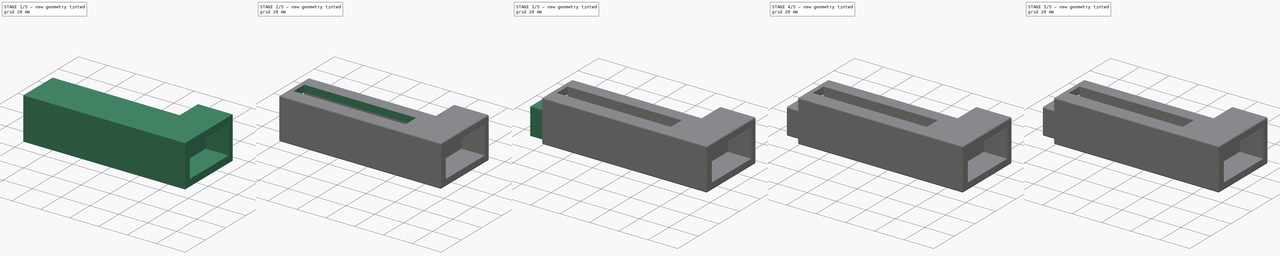
[diagram: build sequence overview — one tinted view per stage of 5, left to right]
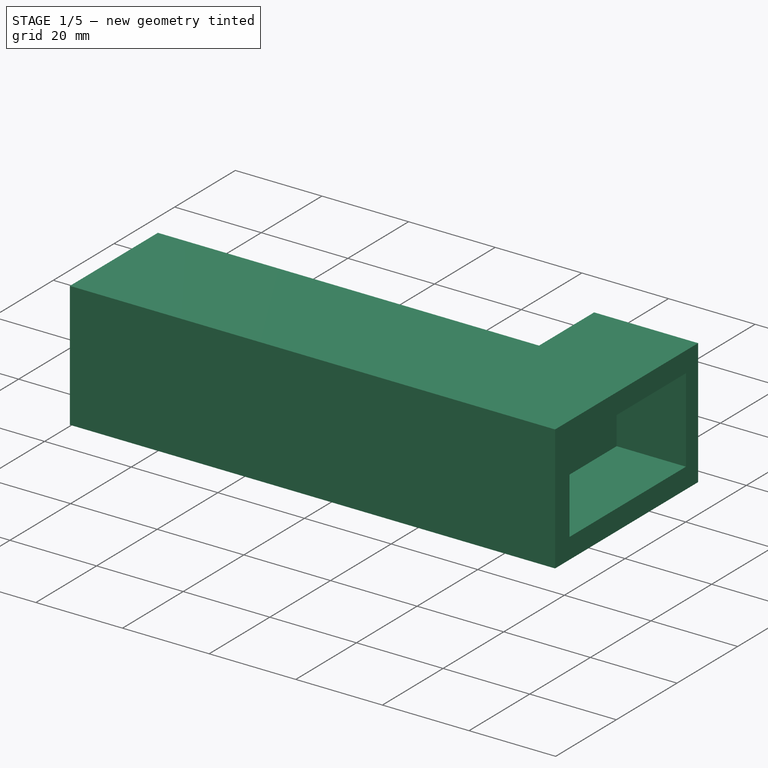
[diagram: stage 1 of 5 — iso view after this stage's code; geometry added in this stage tinted green]
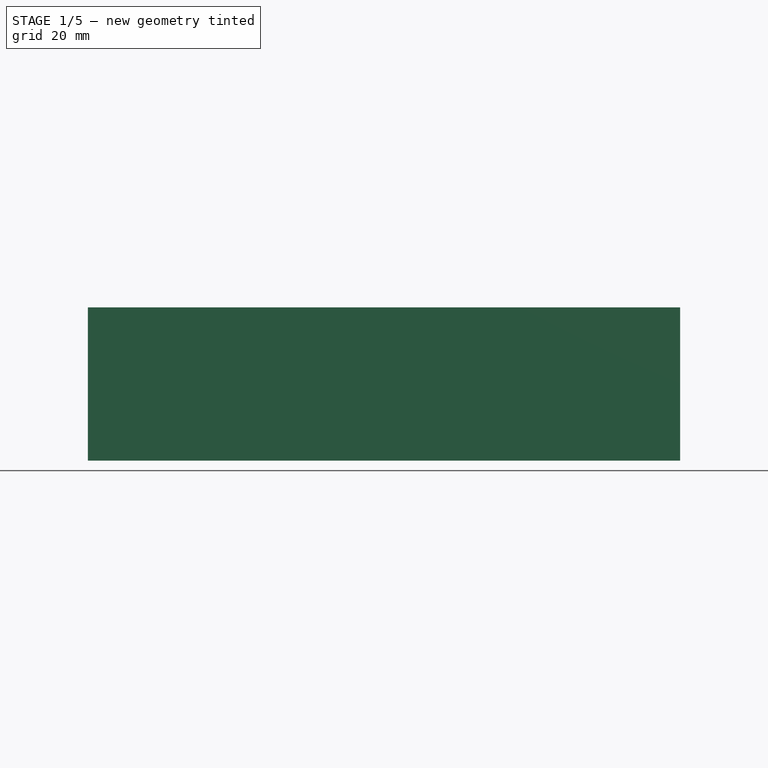
[diagram: stage 1 of 5 — front view after this stage's code; geometry added in this stage tinted green]
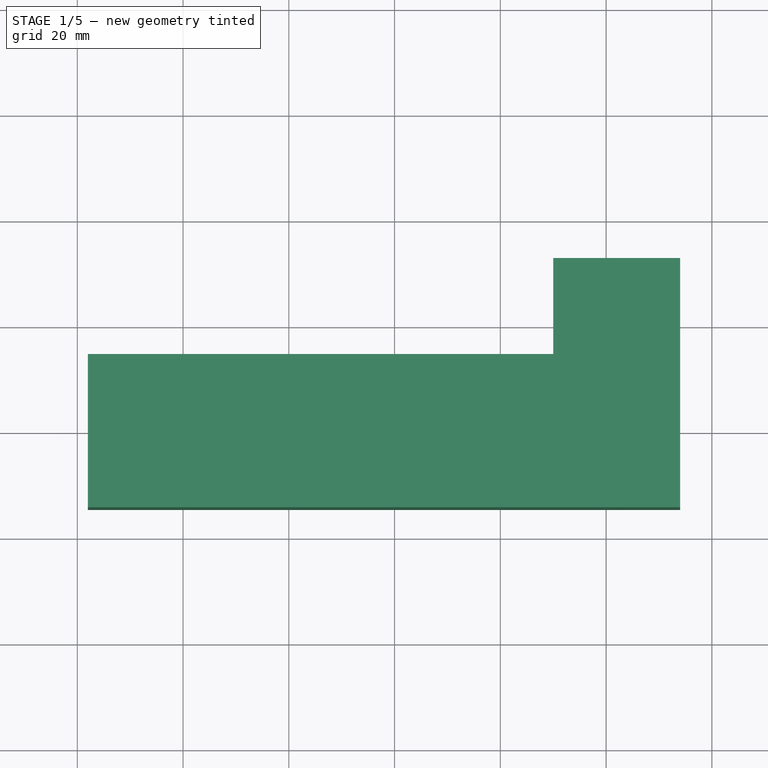
[diagram: stage 1 of 5 — top view after this stage's code; geometry added in this stage tinted green]
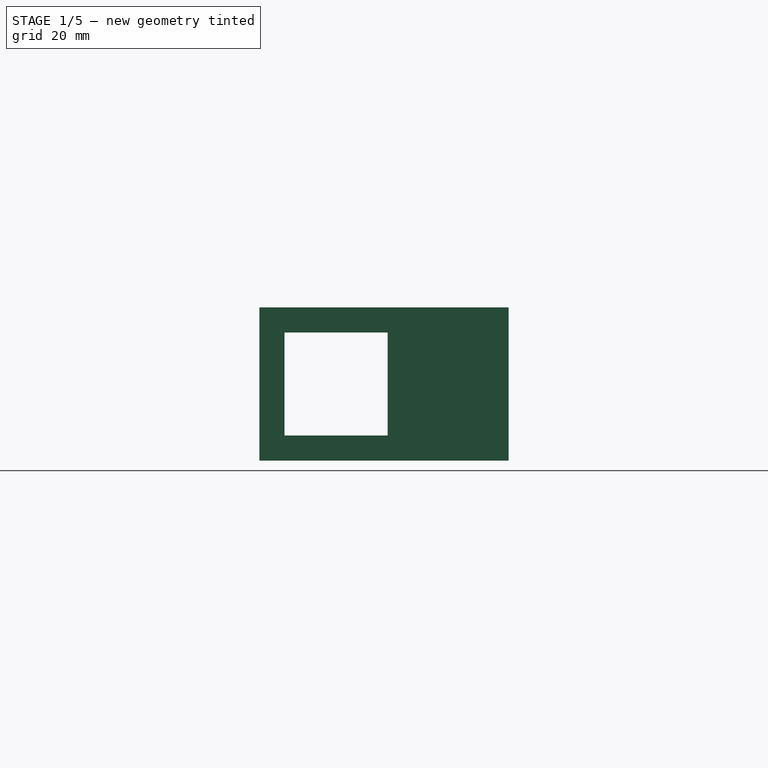
[diagram: stage 1 of 5 — right view after this stage's code; geometry added in this stage tinted green]
FCSTD DOCUMENT  (FreeCAD 0.21R33771 (Git))
Label: 3DP_LinearActuator
License: All rights reserved
LicenseURL: https://en.wikipedia.org/wiki/All_rights_reserved
objects: Sketcher::SketchObject×14, PartDesign::Pocket×11, PartDesign::Pad×3, PartDesign::Fillet×3, PartDesign::Body×3, Spreadsheet::Sheet×1
note: 51 computed .brp shape members not serialized (recipe doc carries the construction recipe); baked Part::Feature solids carry a one-line shape summary decoded from their .brp

FEATURE [PartDesign::Body] Body001  label="LimitSwitchTrig"
  Group = -> [Sketch007,Pad001,Sketch008,Pocket005]
  Origin = -> Origin001
  Placement = pos=(36,0,9) rot=(0,0,1;0rad)
  Tip = -> Pocket005
  expr: .Placement.Base.z = Spreadsheet.pistonWidth / 2
FEATURE [Sketcher::SketchObject] Sketch009
  FullyConstrained = true
  MapMode = 5
  Support = -> [XY_Plane002]
  expr: Constraints[11] = Spreadsheet.pistonWidth / 2 + Spreadsheet.housingThicknessAroundPiston + Spreadsheet.housingPistonClearance
  expr: Constraints[12] = Spreadsheet.pistonWidth + 2 * Spreadsheet.housingThicknessAroundPiston + Spreadsheet.housingPistonClearance * 2
  expr: Constraints[13] = Spreadsheet.housingMotorHeight + Spreadsheet.housingThicknessAroundPiston * 2
  expr: Constraints[15] = Spreadsheet.housingGearThickness
  expr: Constraints[16] = Spreadsheet.pistonLength + Spreadsheet.housingGearThickness - 12 mm
  expr: Constraints[17] = Spreadsheet.pistonLength / 2
  sketch-geometry (6):
    g0: LineSegment StartX=-38 StartY=14.5 StartZ=0 EndX=-38 EndY=-14.5 EndZ=0
    g1: LineSegment StartX=-38 StartY=-14.5 StartZ=0 EndX=74 EndY=-14.5 EndZ=0
    g2: LineSegment StartX=74 StartY=-14.5 StartZ=0 EndX=74 EndY=32.65 EndZ=0
    g3: LineSegment StartX=74 StartY=32.65 StartZ=0 EndX=50 EndY=32.65 EndZ=0
    g4: LineSegment StartX=50 StartY=32.65 StartZ=0 EndX=50 EndY=14.5 EndZ=0
    g5: LineSegment StartX=50 StartY=14.5 StartZ=0 EndX=-38 EndY=14.5 EndZ=0
  constraints (18):
    c: Vertical(g0)
    c: Coincident(g1,g0)
    c: Horizontal(g1)
    c: Coincident(g2,g1)
    c: Vertical(g2)
    c: Coincident(g3,g2)
    c: Horizontal(g3)
    c: Vertical(g4)
    c: Coincident(g5,g4)
    c: Coincident(g5,g0)
    c: Horizontal(g5)
    c: DistanceY(g-1,g0) = 14.5
    c: DistanceY(g0,g0) = 29
    c: DistanceY(g4,g4) = 18.15
    c: Coincident(g4,g3)
    c: DistanceX(g3,g3) = 24
    c: DistanceX(g1,g1) = 112
    c: DistanceX(g-1,g4) = 50
FEATURE [PartDesign::Pad] Pad002  label="Pad_Housing"
  Direction = (0,0,1)
  Length = 29
  Length2 = 10
  Profile = -> Sketch009
  ReferenceAxis = -> Sketch009 [N_Axis]
  Type = 0
  expr: Length = Spreadsheet.pistonWidth + Spreadsheet.housingThicknessAroundPiston * 2 + Spreadsheet.housingPistonClearance * 2
FEATURE [Sketcher::SketchObject] Sketch010
  ExternalGeometry = -> [Pad002]
  FullyConstrained = true
  MapMode = 5
  Placement = pos=(74,0,0) rot=(0.57735,0.57735,0.57735;2.0944rad)
  Support = -> [Pad002]
  expr: Constraints[8] = Spreadsheet.housingPistonWidth
  expr: Constraints[9] = Spreadsheet.housingPistonHeight
  sketch-geometry (8):
    g0: LineSegment StartX=-9.75 StartY=24.25 StartZ=0 EndX=9.75 EndY=24.25 EndZ=0
    g1: LineSegment StartX=9.75 StartY=24.25 StartZ=0 EndX=9.75 EndY=4.75 EndZ=0
    g2: LineSegment StartX=9.75 StartY=4.75 StartZ=0 EndX=-9.75 EndY=4.75 EndZ=0
    g3: LineSegment StartX=-9.75 StartY=4.75 StartZ=0 EndX=-9.75 EndY=24.25 EndZ=0
    g4: LineSegment StartX=-14.5 StartY=0 StartZ=0 EndX=-9.75 EndY=4.75 EndZ=0
    g5: LineSegment StartX=-9.75 StartY=24.25 StartZ=0 EndX=-14.5 EndY=29 EndZ=0
    g6: LineSegment StartX=-9.75 StartY=4.75 StartZ=0 EndX=0 EndY=0 EndZ=0
    g7: LineSegment StartX=0 StartY=0 StartZ=0 EndX=9.75 EndY=4.75 EndZ=0
  constraints (20):
    c: Coincident(g0,g1)
    c: Coincident(g1,g2)
    c: Coincident(g2,g3)
    c: Coincident(g3,g0)
    c: Horizontal(g0)
    c: Horizontal(g2)
    c: Vertical(g1)
    c: Vertical(g3)
    c: DistanceX(g0,g0) = 19.5
    c: DistanceY(g3,g3) = 19.5
    c: Coincident(g4,g-4)
    c: Coincident(g4,g2)
    c: Coincident(g5,g0)
    c: Coincident(g5,g-3)
    c: Equal(g4,g5)
    c: Coincident(g6,g2)
    c: Coincident(g6,g-1)
    c: Coincident(g7,g6)
    c: Coincident(g7,g1)
    c: Equal(g6,g7)
FEATURE [PartDesign::Pocket] Pocket006  label="Pocket_PistonGear"
  BaseFeature = -> Pad002
  Direction = (-1,0,0)
  Length = 5
  Length2 = 5
  Profile = -> Sketch010
  ReferenceAxis = -> Sketch010 [N_Axis]
  Type = 1
FEATURE [Sketcher::SketchObject] Sketch011
  ExternalGeometry = -> [Pocket006]
  FullyConstrained = true
  MapMode = 5
  Placement = pos=(74,0,0) rot=(0.57735,0.57735,0.57735;2.0944rad)
  Support = -> [Pocket006]
  expr: Constraints[10] = Spreadsheet.housingThicknessAroundPiston
  sketch-geometry (4):
    g0: LineSegment StartX=9.75 StartY=24.25 StartZ=0 EndX=28.65 EndY=24.25 EndZ=0
    g1: LineSegment StartX=28.65 StartY=24.25 StartZ=0 EndX=28.65 EndY=4.75 EndZ=0
    g2: LineSegment StartX=28.65 StartY=4.75 StartZ=0 EndX=9.75 EndY=4.75 EndZ=0
    g3: LineSegment StartX=9.75 StartY=4.75 StartZ=0 EndX=9.75 EndY=24.25 EndZ=0
  constraints (11):
    c: Coincident(g0,g1)
    c: Coincident(g1,g2)
    c: Coincident(g2,g3)
    c: Coincident(g3,g0)
    c: Horizontal(g0)
    c: Horizontal(g2)
    c: Vertical(g1)
    c: Vertical(g3)
    c: Coincident(g0,g-3)
    c: DistanceY(g-3,g1) = 0
    c: DistanceX(g1,g-4) = 4
FEATURE [PartDesign::Pocket] Pocket007  label="Pocket_MotorGear"
  BaseFeature = -> Pocket006
  Direction = (-1,0,0)
  Length = 16
  Length2 = 5
  Profile = -> Sketch011
  ReferenceAxis = -> Sketch011 [N_Axis]
  Type = 0
  expr: Length = Spreadsheet.housingGearThickness - Spreadsheet.motorInsetDepth - Spreadsheet.motorShaftCollarDepth
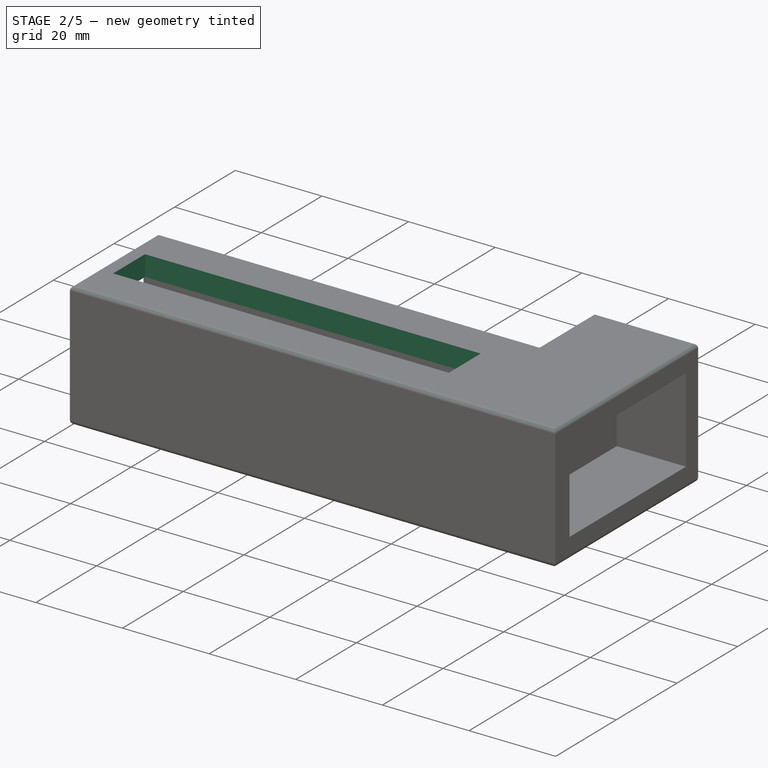
[diagram: stage 2 of 5 — iso view after this stage's code; geometry added in this stage tinted green]
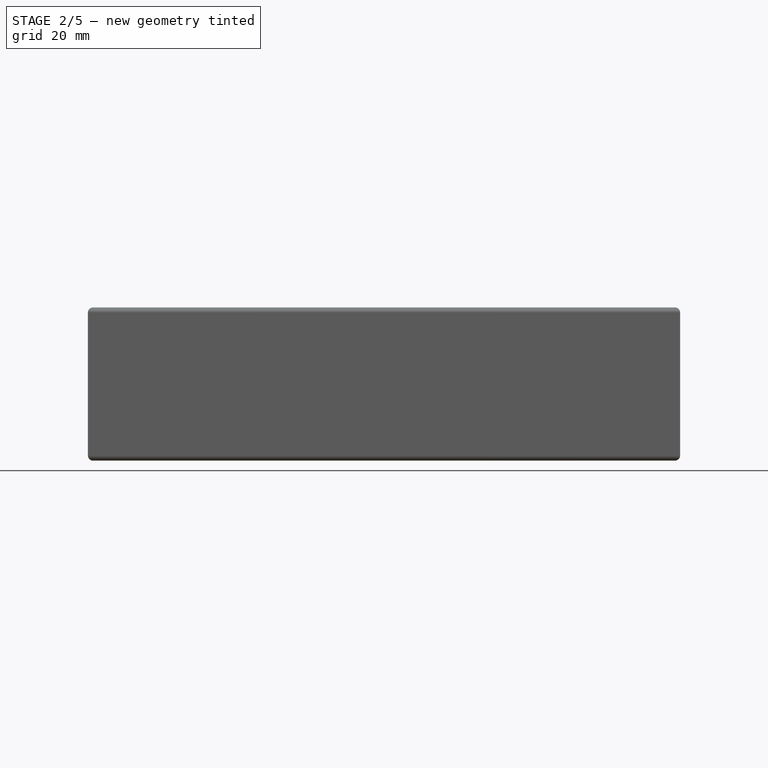
[diagram: stage 2 of 5 — front view after this stage's code; geometry added in this stage tinted green]
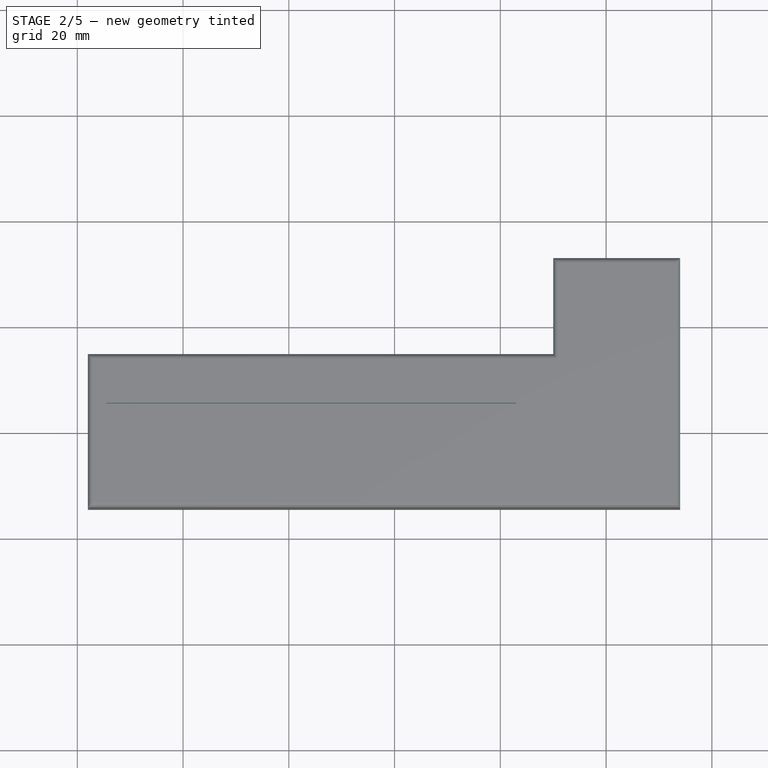
[diagram: stage 2 of 5 — top view after this stage's code; geometry added in this stage tinted green]
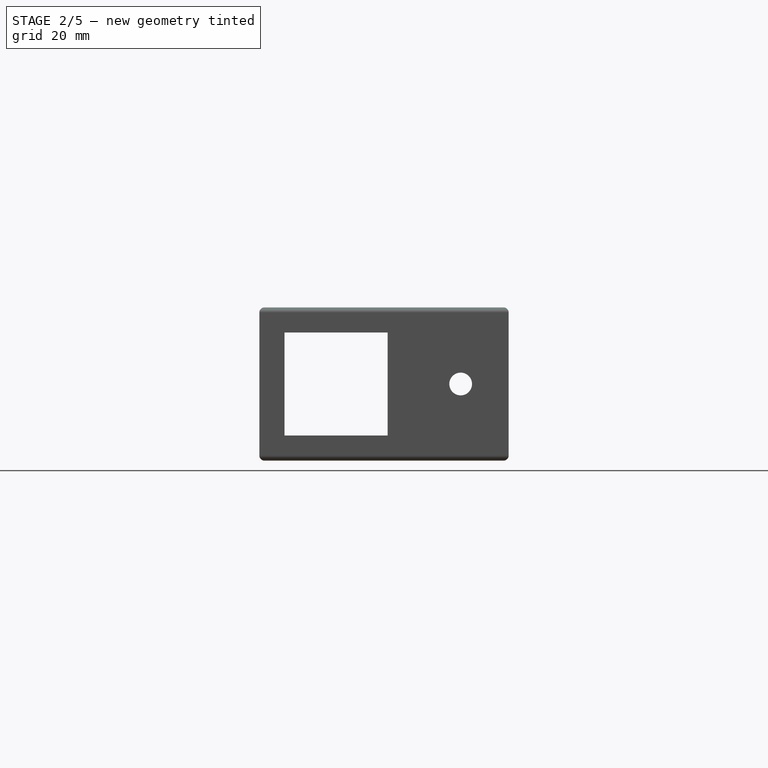
[diagram: stage 2 of 5 — right view after this stage's code; geometry added in this stage tinted green]
FEATURE [PartDesign::Fillet] Fillet002
  Base = -> Pocket007 [Face4,Face3]
  BaseFeature = -> Pocket007
  Radius = 1
  SupportTransform = false
  UseAllEdges = false
FEATURE [Sketcher::SketchObject] Sketch012
  ExternalGeometry = -> [Fillet002]
  FullyConstrained = true
  MapMode = 5
  Placement = pos=(50,0,0) rot=(0.57735,-0.57735,-0.57735;2.0944rad)
  Support = -> [Fillet002]
  expr: Constraints[10] = Spreadsheet.housingThicknessAroundPiston
  expr: Constraints[8] = Spreadsheet.housingMotorHeight
  expr: Constraints[9] = Spreadsheet.housingMotorWidth
  sketch-geometry (6):
    g0: LineSegment StartX=-28.65 StartY=20.625 StartZ=0 EndX=-18.5 EndY=20.625 EndZ=0
    g1: LineSegment StartX=-18.5 StartY=20.625 StartZ=0 EndX=-18.5 EndY=8.375 EndZ=0
    g2: LineSegment StartX=-18.5 StartY=8.375 StartZ=0 EndX=-28.65 EndY=8.375 EndZ=0
    g3: LineSegment StartX=-28.65 StartY=8.375 StartZ=0 EndX=-28.65 EndY=20.625 EndZ=0
    g4: LineSegment StartX=-28.65 StartY=20.625 StartZ=0 EndX=-32.65 EndY=28 EndZ=0
    g5: LineSegment StartX=-28.65 StartY=8.375 StartZ=0 EndX=-32.65 EndY=1 EndZ=0
  constraints (16):
    c: Coincident(g0,g1)
    c: Coincident(g1,g2)
    c: Coincident(g2,g3)
    c: Coincident(g3,g0)
    c: Horizontal(g0)
    c: Horizontal(g2)
    c: Vertical(g1)
    c: Vertical(g3)
    c: DistanceX(g0,g0) = 10.15
    c: DistanceY(g1,g1) = 12.25
    c: DistanceX(g-3,g2) = 4
    c: Coincident(g4,g0)
    c: Coincident(g4,g-3)
    c: Coincident(g5,g2)
    c: Coincident(g5,g-3)
    c: Equal(g5,g4)
FEATURE [PartDesign::Pocket] Pocket008  label="Pocket_MotorBase"
  BaseFeature = -> Fillet002
  Direction = (1,0,0)
  Length = 6
  Length2 = 5
  Profile = -> Sketch012
  ReferenceAxis = -> Sketch012 [N_Axis]
  Type = 0
FEATURE [Sketcher::SketchObject] Sketch013
  ExternalGeometry = -> [Pocket008]
  FullyConstrained = true
  MapMode = 5
  Placement = pos=(56,0,0) rot=(0.57735,-0.57735,-0.57735;2.0944rad)
  Support = -> [Pocket008]
  expr: Constraints[0] = Spreadsheet.motorShaftCollarDiam
  sketch-geometry (1):
    g0: Circle CenterX=-23.575 CenterY=14.5 CenterZ=0 NormalX=0 NormalY=0 NormalZ=1 AngleXU=0 Radius=2.15
  constraints (2):
    c: Diameter(g0) = 4.3
    c: Symmetric(g-3,g-4,g0)
FEATURE [PartDesign::Pocket] Pocket009  label="Pocket_MotorShaft"
  BaseFeature = -> Pocket008
  Direction = (1,0,0)
  Length = 5
  Length2 = 5
  Profile = -> Sketch013
  ReferenceAxis = -> Sketch013 [N_Axis]
  Type = 1
FEATURE [Sketcher::SketchObject] Sketch014
  ExternalGeometry = -> [Pocket009]
  FullyConstrained = true
  MapMode = 5
  Placement = pos=(0,0,29) rot=(0,0,1;0rad)
  Support = -> [Pocket009]
  expr: Constraints[15] = Spreadsheet.triggerWidth + 0.5 mm
  sketch-geometry (6):
    g0: LineSegment StartX=43 StartY=5.25 StartZ=0 EndX=-34.5 EndY=5.25 EndZ=0
    g1: LineSegment StartX=-34.5 StartY=5.25 StartZ=0 EndX=-34.5 EndY=-5.25 EndZ=0
    g2: LineSegment StartX=-34.5 StartY=-5.25 StartZ=0 EndX=43 EndY=-5.25 EndZ=0
    g3: LineSegment StartX=43 StartY=-5.25 StartZ=0 EndX=43 EndY=5.25 EndZ=0
    g4: LineSegment StartX=43 StartY=5.25 StartZ=0 EndX=0 EndY=0 EndZ=0
    g5: LineSegment StartX=0 StartY=0 StartZ=0 EndX=43 EndY=-5.25 EndZ=0
  constraints (16):
    c: Coincident(g0,g1)
    c: Coincident(g1,g2)
    c: Coincident(g2,g3)
    c: Coincident(g3,g0)
    c: Horizontal(g0)
    c: Horizontal(g2)
    c: Vertical(g1)
    c: Vertical(g3)
    c: Coincident(g4,g0)
    c: Coincident(g4,g-1)
    c: Coincident(g5,g4)
    c: Coincident(g5,g2)
    c: Equal(g5,g4)
    c: DistanceX(g-3,g0) = 2.5
    c: DistanceX(g-3,g2) = 80
    c: DistanceY(g1,g1) = 10.5
FEATURE [PartDesign::Pocket] Pocket010  label="Pocket_Trigger"
  BaseFeature = -> Pocket009
  Direction = (0,0,-1)
  Length = 5
  Length2 = 5
  Profile = -> Sketch014
  ReferenceAxis = -> Sketch014 [N_Axis]
  Type = 2
FEATURE [PartDesign::Body] Body002  label="Housing"
  Group = -> [Sketch009,Pad002,Sketch010,Pocket006,Sketch011,Pocket007,Fillet002,Sketch012,Pocket008,Sketch013,Pocket009,Sketch014,Pocket010]
  Origin = -> Origin002
  Placement = pos=(0,0,-14.5) rot=(0,0,1;0rad)
  Tip = -> Pocket010
  expr: .Placement.Base.z = -Spreadsheet.pistonWidth / 2 - Spreadsheet.housingThicknessAroundPiston - Spreadsheet.housingPistonClearance
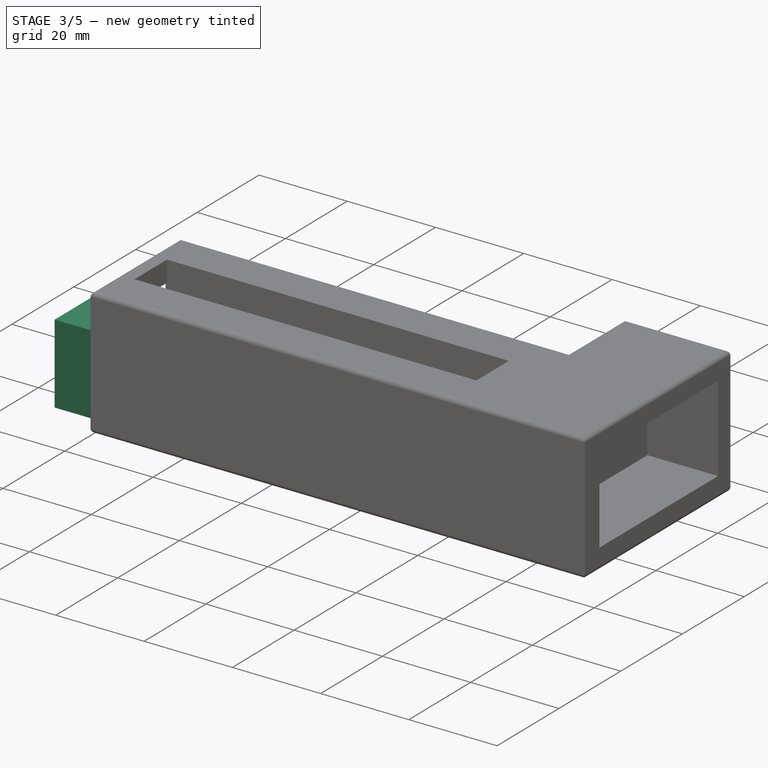
[diagram: stage 3 of 5 — iso view after this stage's code; geometry added in this stage tinted green]
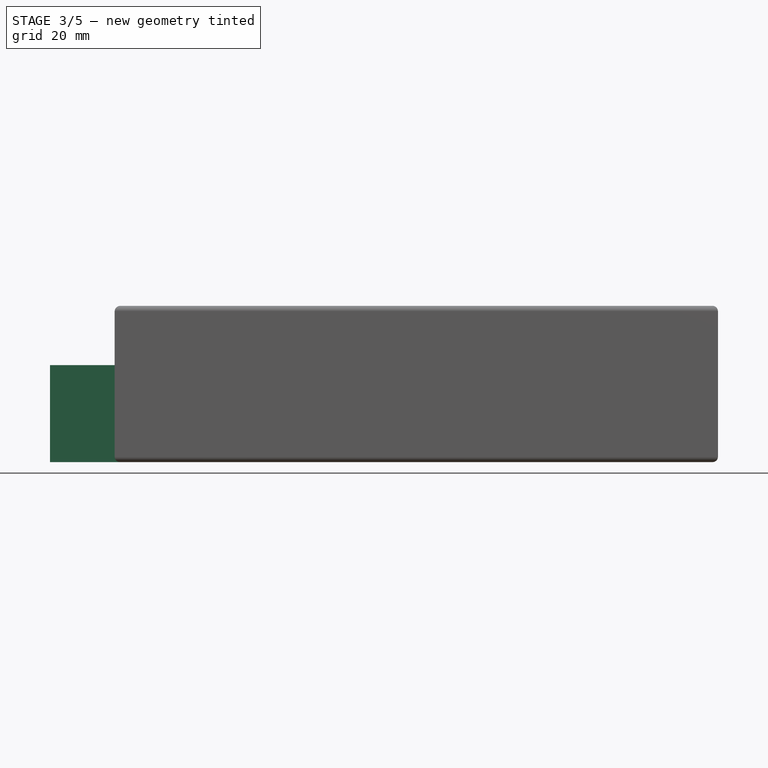
[diagram: stage 3 of 5 — front view after this stage's code; geometry added in this stage tinted green]
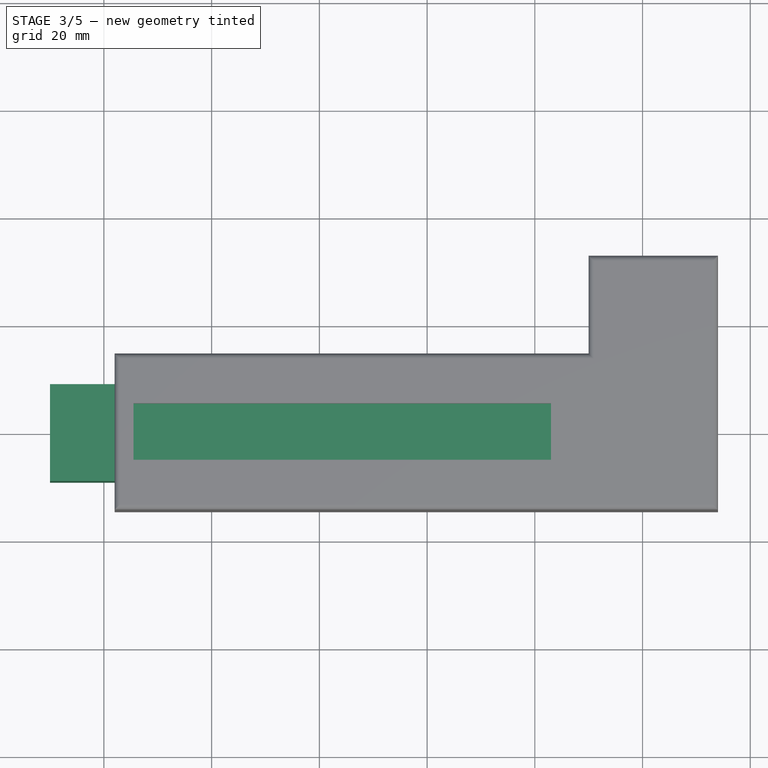
[diagram: stage 3 of 5 — top view after this stage's code; geometry added in this stage tinted green]
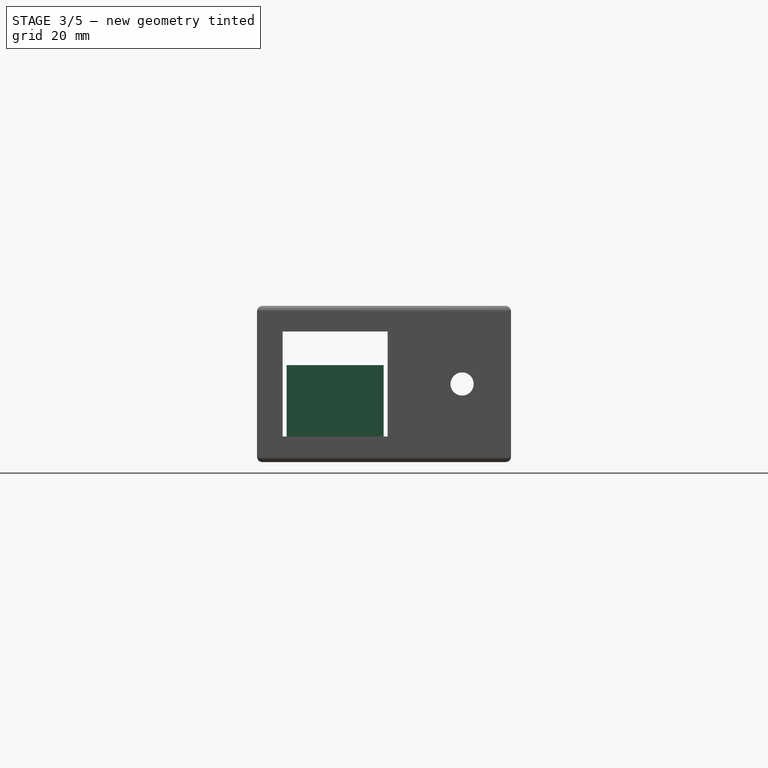
[diagram: stage 3 of 5 — right view after this stage's code; geometry added in this stage tinted green]
FEATURE [Sketcher::SketchObject] Sketch
  FullyConstrained = true
  MapMode = 5
  Support = -> [XY_Plane]
  expr: Constraints[10] = Spreadsheet.pistonLength
  expr: Constraints[9] = Spreadsheet.pistonWidth
  sketch-geometry (4):
    g0: LineSegment StartX=-50 StartY=9 StartZ=0 EndX=50 EndY=9 EndZ=0
    g1: LineSegment StartX=50 StartY=9 StartZ=0 EndX=50 EndY=-9 EndZ=0
    g2: LineSegment StartX=50 StartY=-9 StartZ=0 EndX=-50 EndY=-9 EndZ=0
    g3: LineSegment StartX=-50 StartY=-9 StartZ=0 EndX=-50 EndY=9 EndZ=0
  constraints (11):
    c: Coincident(g0,g1)
    c: Coincident(g1,g2)
    c: Coincident(g2,g3)
    c: Coincident(g3,g0)
    c: Horizontal(g0)
    c: Horizontal(g2)
    c: Vertical(g1)
    c: Vertical(g3)
    c: Symmetric(g2,g0,g-1)
    c: DistanceY(g3,g3) = 18
    c: DistanceX(g0,g0) = 100
FEATURE [Spreadsheet::Sheet] Spreadsheet
  cells = A1='pistonLength; B1(pistonLength)==100 mm; A2='pistonWidth; B2(pistonWidth)==18 mm; A3='pistonClearance; B3(pistonClearance)==0.5 mm; A4='pistonNutWidth; B4(pistonNutWidth)==11.4 mm; A5='pistonNutDepth; B5(pistonNutDepth)==pistonWidth / 2 + 6.5 mm; A6='pistonNutThickness; B6(pistonNutThickness)==5.8 mm; A7='pistonHollowDiam; B7(pistonHollowDiam)==8 mm; A8='pistonUnhollowedLength; B8(pistonUnhollowedLength)==12 mm; A10='insertDiam; B10(insertDiam)==5.6 mm; A11='insertDepth; B11(insertDepth)==4 mm; A12='LA_ConnectionDiam; B12(LA_ConnectionDiam)==4.5 mm; A14='triggerHeight; B14(triggerHeight)==5 mm; A15='triggerSlotTravel; B15(triggerSlotTravel)==10 mm; A16='triggerWidth; B16(triggerWidth)==10 mm; A17='triggerLength; B17(triggerLength)==24 mm; A18='triggerScrewDiam; B18(triggerScrewDiam)==6.75 mm; A19='triggerScrewHeight; B19(triggerScrewHeight)==3 mm; A20='triggerScrewShaftDiam; B20(triggerScrewShaftDiam)==3.45 mm; A22='housingPistonWidth; B22(housingPistonWidth)==pistonWidth + housingPistonClearance; A23='housingPistonHeight; B23(housingPistonHeight)==pistonWidth + housingPistonClearance; A24='housingThicknessAroundPiston; B24(housingThicknessAroundPiston)==4 mm; A25='housingPistonClearance; B25(housingPistonClearance)==1.5 mm; A26='housingMotorWidth; B26(housingMotorWidth)==12.25 mm; A27='housingMotorHeight; B27(housingMotorHeight)==10.15 mm; A28='housingGearThickness; B28(housingGearThickness)==24 mm; A30='motorInsetDepth; B30(motorInsetDepth)==6 mm; A31='motorShaftCollarDepth; B31(motorShaftCollarDepth)==2 mm; A32='motorShaftCollarDiam; B32(motorShaftCollarDiam)==4.3 mm
FEATURE [PartDesign::Pad] Pad
  Direction = (0,0,1)
  Length = 18
  Length2 = 10
  Profile = -> Sketch
  ReferenceAxis = -> Sketch [N_Axis]
  Type = 0
  expr: Length = Spreadsheet.pistonWidth
FEATURE [PartDesign::Body] Body  label="Piston"
  Group = -> [Sketch,Pad,Fillet,Sketch001,Pocket,Sketch002,Pocket001,Sketch003,Pocket002,Sketch005,Pocket003,Sketch006,Pocket004,Fillet001]
  Origin = -> Origin
  Placement = pos=(0,0,-9) rot=(0,0,1;0rad)
  Tip = -> Fillet001
  expr: .Placement.Base.z = -Spreadsheet.pistonWidth / 2
FEATURE [Sketcher::SketchObject] Sketch007
  FullyConstrained = true
  MapMode = 5
  Support = -> [XY_Plane001]
  expr: Constraints[25] = Spreadsheet.triggerWidth
  expr: Constraints[58] = Spreadsheet.triggerLength
  expr: Constraints[7] = Spreadsheet.triggerSlotTravel
  expr: Constraints[8] = Spreadsheet.triggerScrewShaftDiam
  sketch-geometry (23):
    g0: ArcOfCircle CenterX=-10 CenterY=0 CenterZ=0 NormalX=0 NormalY=0 NormalZ=1 AngleXU=0 Radius=1.725 StartAngle=1.5708 EndAngle=4.71239
    g1: ArcOfCircle CenterX=0 CenterY=0 CenterZ=0 NormalX=0 NormalY=0 NormalZ=1 AngleXU=0 Radius=1.725 StartAngle=4.71239 EndAngle=7.85398
    g2: LineSegment StartX=-10 StartY=-1.725 StartZ=0 EndX=0 EndY=-1.725 EndZ=0
    g3: LineSegment StartX=5e-16 StartY=1.725 StartZ=0 EndX=-10 EndY=1.725 EndZ=0
    g4: LineSegment StartX=-17 StartY=5 StartZ=0 EndX=3 EndY=5 EndZ=0
    g5: LineSegment StartX=3 StartY=-5 StartZ=0 EndX=-17 EndY=-5 EndZ=0
    g6: LineSegment StartX=-19 StartY=3 StartZ=0 EndX=-19 EndY=-3 EndZ=0
    g7: LineSegment StartX=5 StartY=3 StartZ=0 EndX=5 EndY=-3 EndZ=0
    g8: ArcOfCircle CenterX=-17 CenterY=3 CenterZ=0 NormalX=0 NormalY=0 NormalZ=1 AngleXU=0 Radius=2 StartAngle=1.5708 EndAngle=3.14159
    g9: ArcOfCircle CenterX=-17 CenterY=-3 CenterZ=0 NormalX=0 NormalY=0 NormalZ=1 AngleXU=0 Radius=2 StartAngle=3.14159 EndAngle=4.71239
    g10: ArcOfCircle CenterX=3 CenterY=3 CenterZ=0 NormalX=0 NormalY=0 NormalZ=1 AngleXU=0 Radius=2 StartAngle=0 EndAngle=1.5708
    g11: ArcOfCircle CenterX=3 CenterY=-3 CenterZ=0 NormalX=0 NormalY=0 NormalZ=1 AngleXU=0 Radius=2 StartAngle=4.71239 EndAngle=6.28319
    g12: LineSegment StartX=5 StartY=3 StartZ=0 EndX=0 EndY=0 EndZ=0
    g13: LineSegment StartX=5 StartY=-3 StartZ=0 EndX=0 EndY=0 EndZ=0
    g14: LineSegment StartX=5 StartY=-3 StartZ=0 EndX=0 EndY=0 EndZ=0
    g15: LineSegment StartX=5 StartY=3 StartZ=0 EndX=3 EndY=3 EndZ=0
    g16: LineSegment StartX=3 StartY=3 StartZ=0 EndX=3 EndY=5 EndZ=0
    g17: LineSegment StartX=5 StartY=-3 StartZ=0 EndX=3 EndY=-3 EndZ=0
    g18: LineSegment StartX=3 StartY=-3 StartZ=0 EndX=3 EndY=-5 EndZ=0
    g19: LineSegment StartX=-17 StartY=-5 StartZ=0 EndX=-17 EndY=-3 EndZ=0
    g20: LineSegment StartX=-17 StartY=-3 StartZ=0 EndX=-19 EndY=-3 EndZ=0
    g21: LineSegment StartX=-17 StartY=3 StartZ=0 EndX=-19 EndY=3 EndZ=0
    g22: LineSegment StartX=-17 StartY=3 StartZ=0 EndX=-17 EndY=5 EndZ=0
  constraints (59):
    c: Tangent(g0,g2) = -1.5708
    c: Tangent(g2,g1) = -1.5708
    c: Tangent(g1,g3) = -1.5708
    c: Tangent(g3,g0) = -1.5708
    c: Equal(g0,g1)
    c: PointOnObject(g0,g-1)
    c: Coincident(g-1,g1)
    c: DistanceX(g3,g3) = 10
    c: Diameter(g0) = 3.45
    c: Horizontal(g4)
    c: Horizontal(g5)
    c: Vertical(g6)
    c: Vertical(g7)
    c: Coincident(g8,g6)
    c: Coincident(g8,g4)
    c: Coincident(g9,g5)
    c: Coincident(g9,g6)
    c: Coincident(g10,g4)
    c: Coincident(g10,g7)
    c: Coincident(g11,g5)
    c: Coincident(g11,g7)
    c: Equal(g10,g11)
    c: Equal(g11,g9)
    c: Equal(g9,g8)
    c: Radius(g8) = 2
    c: DistanceY(g5,g4) = 10
    c: Equal(g7,g6)
    c: Equal(g5,g4)
    c: DistanceX(g1,g7) = 5
    c: Coincident(g12,g10)
    c: Coincident(g12,g1)
    c: Coincident(g13,g11)
    c: Coincident(g13,g1)
    c: Equal(g13,g12)
    c: Coincident(g14,g11)
    c: Coincident(g14,g1)
    c: Coincident(g15,g10)
    c: Coincident(g15,g10)
    c: Coincident(g16,g10)
    c: Coincident(g16,g4)
    c: Coincident(g17,g11)
    c: Coincident(g17,g11)
    c: Coincident(g18,g11)
    c: Coincident(g18,g5)
    c: Coincident(g19,g5)
    c: Coincident(g19,g9)
    c: Coincident(g20,g9)
    c: Coincident(g20,g6)
    c: Coincident(g21,g8)
    c: Coincident(g21,g6)
    c: Coincident(g22,g8)
    c: Coincident(g22,g4)
    c: Horizontal(g21)
    c: Horizontal(g20)
    c: Horizontal(g17)
    c: Horizontal(g15)
    c: Vertical(g22)
    c: Vertical(g19)
    c: DistanceX(g6,g7) = 24
FEATURE [PartDesign::Pad] Pad001  label="MainPad"
  Direction = (0,0,1)
  Length = 5
  Length2 = 10
  Profile = -> Sketch007
  ReferenceAxis = -> Sketch007 [N_Axis]
  Type = 0
  expr: Length = Spreadsheet.triggerHeight
FEATURE [Sketcher::SketchObject] Sketch008
  ExternalGeometry = -> [Pad001]
  FullyConstrained = true
  MapMode = 5
  Placement = pos=(0,0,5) rot=(0,0,1;0rad)
  Support = -> [Pad001]
  expr: Constraints[8] = Spreadsheet.triggerScrewDiam
  sketch-geometry (4):
    g0: ArcOfCircle CenterX=0 CenterY=1e-16 CenterZ=0 NormalX=0 NormalY=0 NormalZ=1 AngleXU=0 Radius=3.375 StartAngle=4.71239 EndAngle=7.85398
    g1: ArcOfCircle CenterX=-10 CenterY=0 CenterZ=0 NormalX=0 NormalY=0 NormalZ=1 AngleXU=0 Radius=3.375 StartAngle=1.5708 EndAngle=4.71239
    g2: LineSegment StartX=-2.46992e-11 StartY=3.375 StartZ=0 EndX=-10 EndY=3.375 EndZ=0
    g3: LineSegment StartX=-10 StartY=-3.375 StartZ=0 EndX=-3.9098e-12 EndY=-3.375 EndZ=0
  constraints (9):
    c: Tangent(g0,g2) = -1.5708
    c: Tangent(g2,g1) = -1.5708
    c: Tangent(g1,g3) = -1.5708
    c: Tangent(g3,g0) = -1.5708
    c: Equal(g0,g1)
    c: Coincident(g0,g-1)
    c: PointOnObject(g1,g-1)
    c: DistanceX(g1,g-3) = 0
    c: Diameter(g1) = 6.75
FEATURE [PartDesign::Pocket] Pocket005  label="ScrewheadPocket"
  BaseFeature = -> Pad001
  Direction = (0,0,-1)
  Length = 3.5
  Length2 = 5
  Profile = -> Sketch008
  ReferenceAxis = -> Sketch008 [N_Axis]
  Type = 0
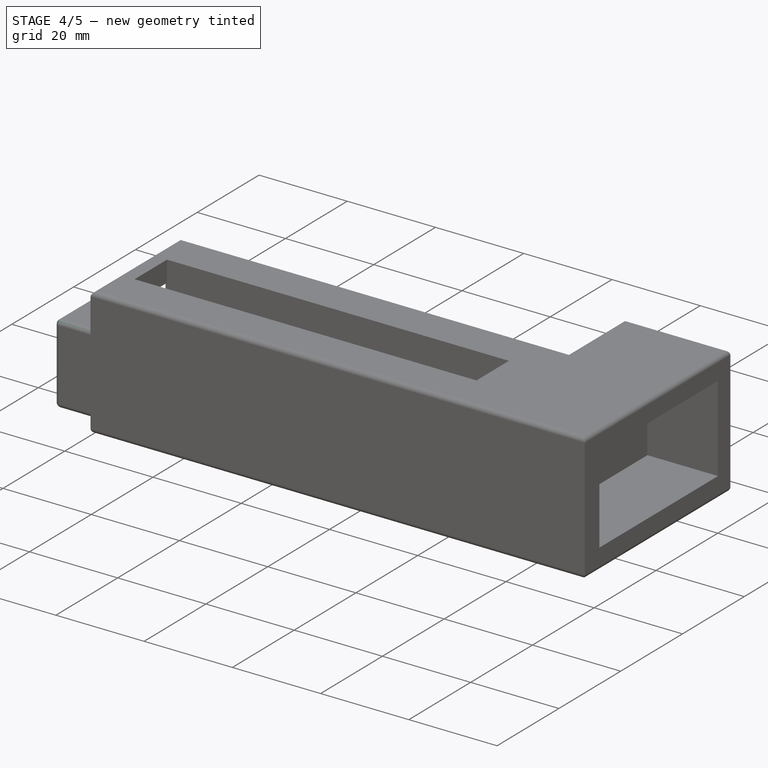
[diagram: stage 4 of 5 — iso view after this stage's code; geometry added in this stage tinted green]
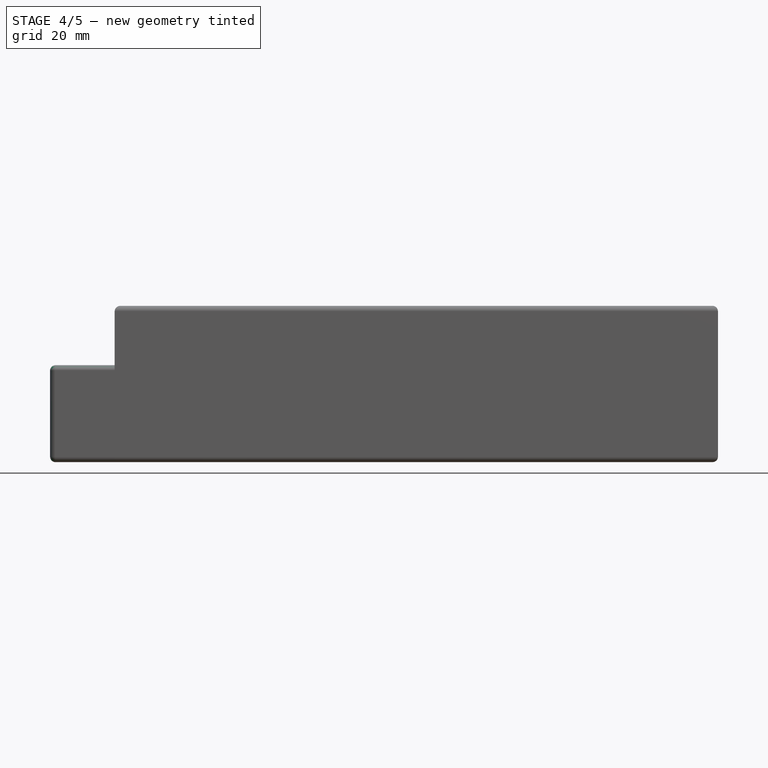
[diagram: stage 4 of 5 — front view after this stage's code; geometry added in this stage tinted green]
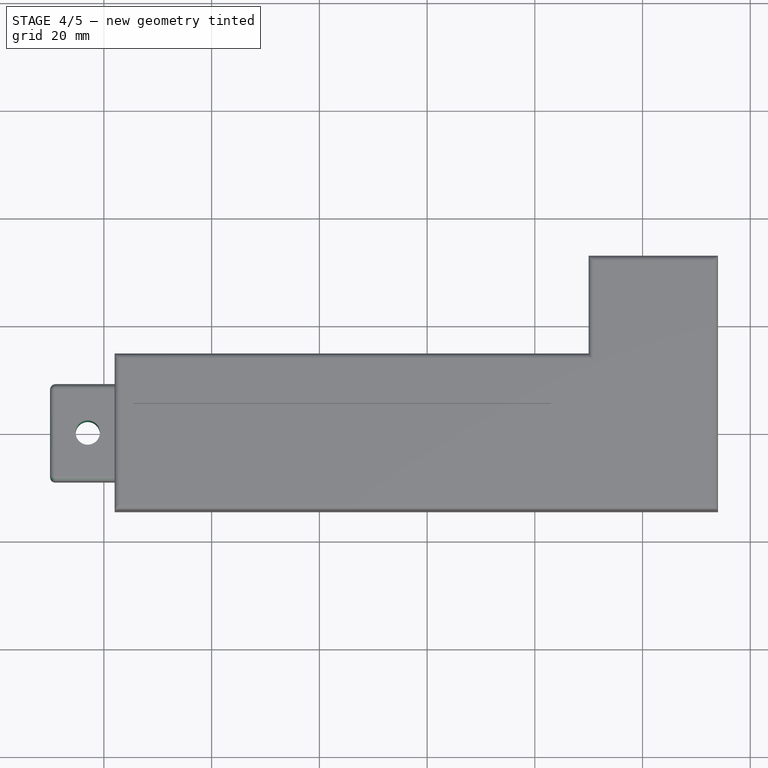
[diagram: stage 4 of 5 — top view after this stage's code; geometry added in this stage tinted green]
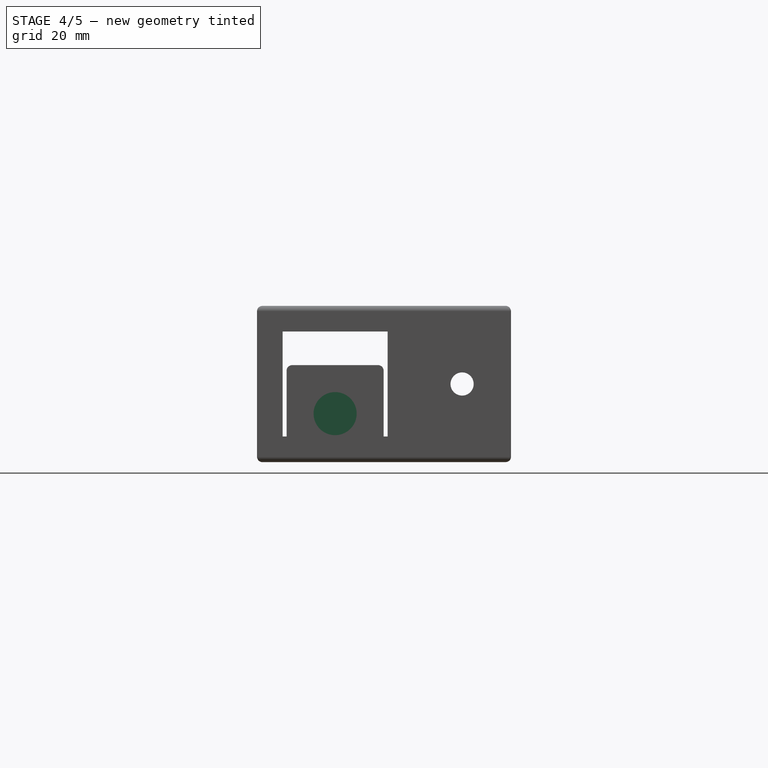
[diagram: stage 4 of 5 — right view after this stage's code; geometry added in this stage tinted green]
FEATURE [PartDesign::Fillet] Fillet
  Base = -> Pad [Edge10,Edge4,Edge9,Edge3,Edge11,Edge1,Edge12,Edge8]
  BaseFeature = -> Pad
  Radius = 1
  SupportTransform = false
  UseAllEdges = false
FEATURE [Sketcher::SketchObject] Sketch001
  ExternalGeometry = -> [Fillet]
  FullyConstrained = true
  MapMode = 5
  Placement = pos=(0,0,18) rot=(0,0,1;0rad)
  Support = -> [Fillet]
  expr: Constraints[13] = Spreadsheet.pistonNutWidth
  expr: Constraints[14] = Spreadsheet.pistonNutThickness
  sketch-geometry (6):
    g0: LineSegment StartX=40.2 StartY=5.7 StartZ=0 EndX=46 EndY=5.7 EndZ=0
    g1: LineSegment StartX=46 StartY=5.7 StartZ=0 EndX=46 EndY=-5.7 EndZ=0
    g2: LineSegment StartX=46 StartY=-5.7 StartZ=0 EndX=40.2 EndY=-5.7 EndZ=0
    g3: LineSegment StartX=40.2 StartY=-5.7 StartZ=0 EndX=40.2 EndY=5.7 EndZ=0
    g4: LineSegment StartX=0 StartY=9e-16 StartZ=0 EndX=40.2 EndY=5.7 EndZ=0
    g5: LineSegment StartX=40.2 StartY=-5.7 StartZ=0 EndX=0 EndY=9e-16 EndZ=0
  constraints (16):
    c: Coincident(g0,g1)
    c: Coincident(g1,g2)
    c: Coincident(g2,g3)
    c: Coincident(g3,g0)
    c: Horizontal(g0)
    c: Horizontal(g2)
    c: Vertical(g1)
    c: Vertical(g3)
    c: Coincident(g4,g-1)
    c: Coincident(g4,g0)
    c: Coincident(g5,g2)
    c: Coincident(g5,g4)
    c: Equal(g5,g4)
    c: DistanceY(g3,g3) = 11.4
    c: DistanceX(g0,g0) = 5.8
    c: DistanceX(g1,g-3) = 4
FEATURE [PartDesign::Pocket] Pocket  label="NutPocket"
  BaseFeature = -> Fillet
  Direction = (0,0,-1)
  Length = 15.5
  Length2 = 5
  Profile = -> Sketch001
  ReferenceAxis = -> Sketch001 [N_Axis]
  Type = 0
  expr: Length = Spreadsheet.pistonNutDepth
FEATURE [Sketcher::SketchObject] Sketch002
  ExternalGeometry = -> [Pocket]
  FullyConstrained = true
  MapMode = 5
  Placement = pos=(50,0,0) rot=(0.57735,0.57735,0.57735;2.0944rad)
  Support = -> [Pocket]
  sketch-geometry (1):
    g0: Circle CenterX=0 CenterY=9 CenterZ=0 NormalX=0 NormalY=0 NormalZ=1 AngleXU=0 Radius=4
  constraints (2):
    c: Diameter(g0) = 8
    c: Symmetric(g-3,g-4,g0)
FEATURE [PartDesign::Pocket] Pocket001  label="ThreadPocket"
  BaseFeature = -> Pocket
  Direction = (-1,0,0)
  Length = 88
  Length2 = 5
  Profile = -> Sketch002
  ReferenceAxis = -> Sketch002 [N_Axis]
  Type = 0
  expr: Length = Spreadsheet.pistonLength - Spreadsheet.pistonUnhollowedLength
FEATURE [Sketcher::SketchObject] Sketch003
  ExternalGeometry = -> [Pocket001]
  FullyConstrained = true
  MapMode = 5
  Placement = pos=(0,0,18) rot=(0,0,1;0rad)
  Support = -> [Pocket001]
  expr: Constraints[5] = Spreadsheet.LA_ConnectionDiam
  expr: Constraints[6] = Spreadsheet.pistonUnhollowedLength / 2
  sketch-geometry (3):
    g0: LineSegment StartX=-49 StartY=8 StartZ=0 EndX=-43 EndY=0 EndZ=0
    g1: LineSegment StartX=-43 StartY=0 StartZ=0 EndX=-49 EndY=-8 EndZ=0
    g2: Circle CenterX=-43 CenterY=0 CenterZ=0 NormalX=0 NormalY=0 NormalZ=1 AngleXU=0 Radius=2.25
  constraints (7):
    c: Coincident(g0,g-3)
    c: Coincident(g1,g0)
    c: Coincident(g1,g-3)
    c: Equal(g1,g0)
    c: Coincident(g2,g0)
    c: Diameter(g2) = 4.5
    c: DistanceX(g1,g2) = 6
FEATURE [PartDesign::Pocket] Pocket002  label="AttachmentPocket"
  BaseFeature = -> Pocket001
  Direction = (0,0,-1)
  Length = 5
  Length2 = 5
  Profile = -> Sketch003
  ReferenceAxis = -> Sketch003 [N_Axis]
  Type = 1
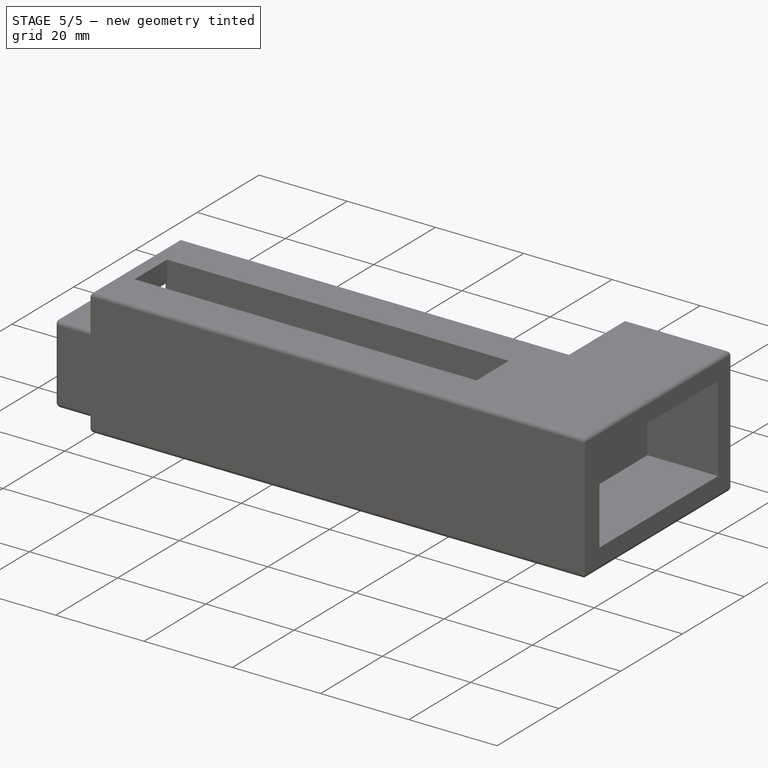
[diagram: stage 5 of 5 — iso view after this stage's code; geometry added in this stage tinted green]
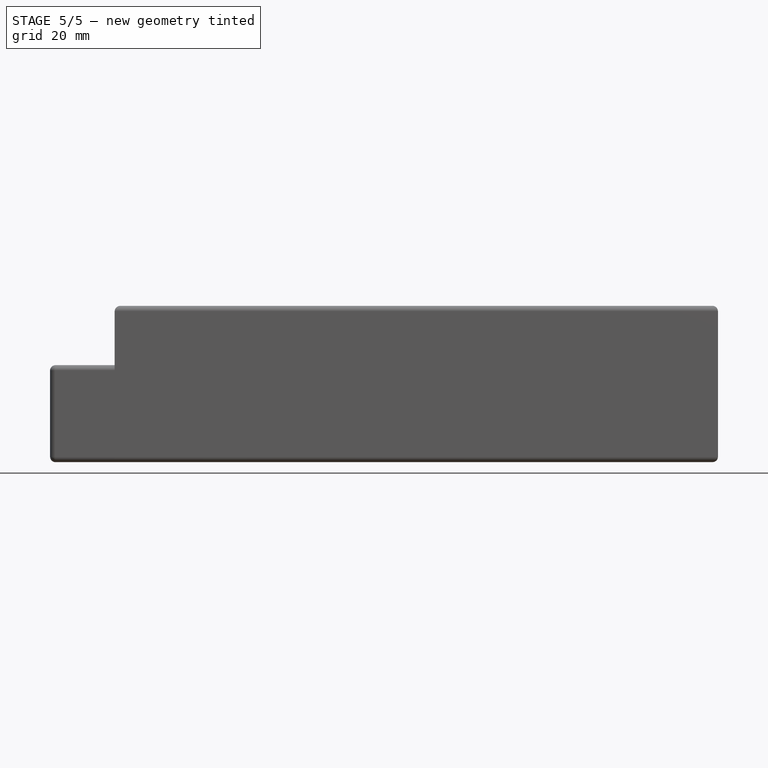
[diagram: stage 5 of 5 — front view after this stage's code; geometry added in this stage tinted green]
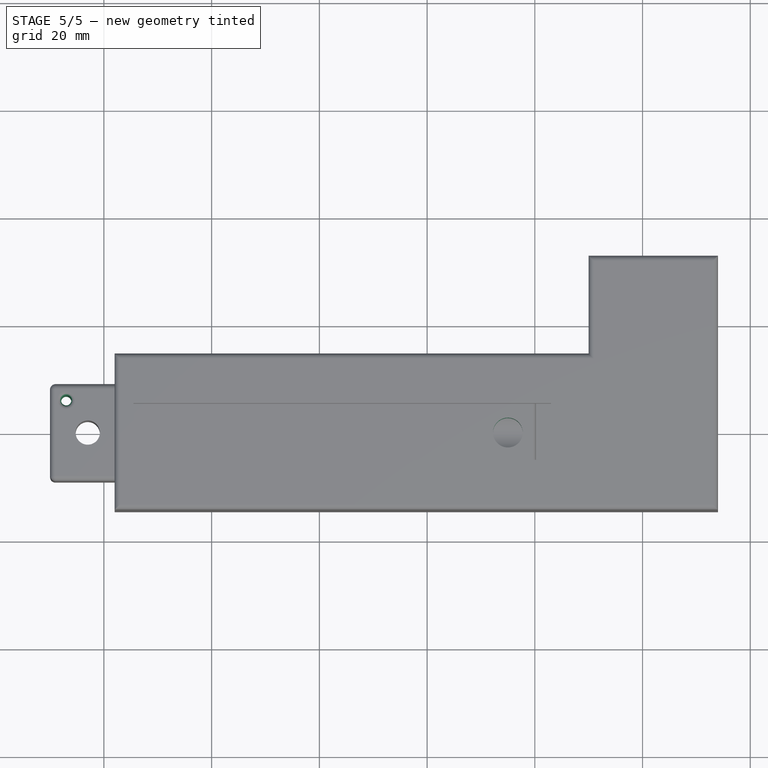
[diagram: stage 5 of 5 — top view after this stage's code; geometry added in this stage tinted green]
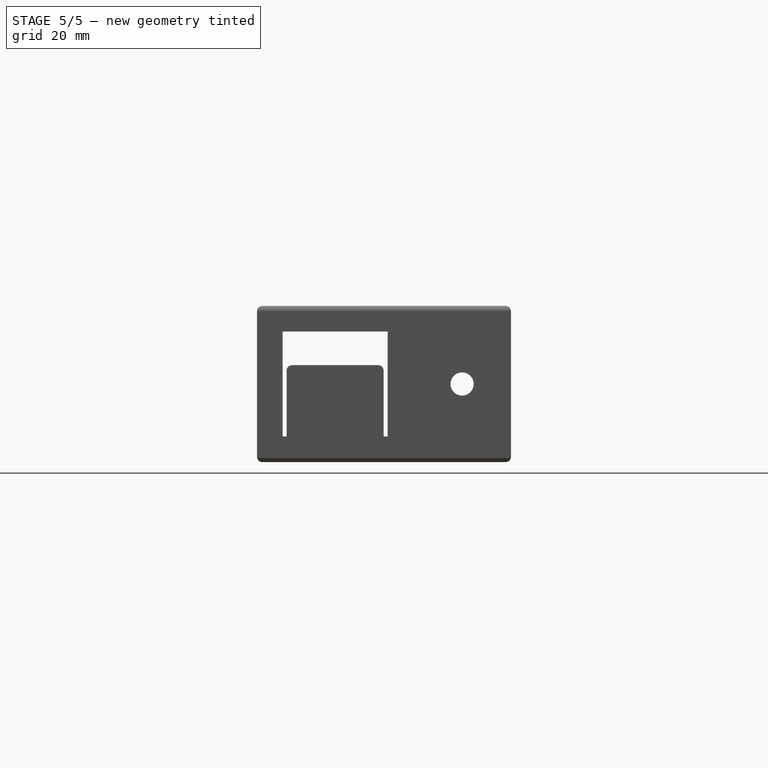
[diagram: stage 5 of 5 — right view after this stage's code; geometry added in this stage tinted green]
FEATURE [Sketcher::SketchObject] Sketch005
  ExternalGeometry = -> [Pocket002]
  FullyConstrained = true
  MapMode = 5
  Placement = pos=(0,0,18) rot=(0,0,1;0rad)
  Support = -> [Pocket002]
  sketch-geometry (2):
    g0: Circle CenterX=-47 CenterY=6 CenterZ=0 NormalX=0 NormalY=0 NormalZ=1 AngleXU=0 Radius=0.95
    g1: Circle CenterX=35 CenterY=-6 CenterZ=0 NormalX=0 NormalY=0 NormalZ=1 AngleXU=0 Radius=0.95
  constraints (6):
    c: Diameter(g0) = 1.9
    c: Equal(g1,g0)
    c: DistanceY(g0,g-4) = 2
    c: DistanceX(g-4,g0) = 2
    c: DistanceX(g1,g-5) = 15
    c: DistanceY(g-5,g1) = 2
FEATURE [PartDesign::Pocket] Pocket003  label="SetPinPocket"
  BaseFeature = -> Pocket002
  Direction = (0,0,-1)
  Length = 15
  Length2 = 5
  Profile = -> Sketch005
  ReferenceAxis = -> Sketch005 [N_Axis]
  Type = 1
FEATURE [Sketcher::SketchObject] Sketch006
  ExternalGeometry = -> [Pocket003]
  FullyConstrained = true
  MapMode = 5
  Placement = pos=(0,0,18) rot=(0,0,1;0rad)
  Support = -> [Pocket003]
  sketch-geometry (1):
    g0: Circle CenterX=35 CenterY=0 CenterZ=0 NormalX=0 NormalY=0 NormalZ=1 AngleXU=0 Radius=2.7625
  constraints (3):
    c: PointOnObject(g0,g-1)
    c: DistanceX(g0,g-3) = 15
    c: Diameter(g0) = 5.525
FEATURE [PartDesign::Pocket] Pocket004  label="LimSwInsert"
  BaseFeature = -> Pocket003
  Direction = (0,0,-1)
  Length = 6
  Length2 = 5
  Profile = -> Sketch006
  ReferenceAxis = -> Sketch006 [N_Axis]
  Type = 0
  expr: Length = Spreadsheet.insertDepth + 2 mm
FEATURE [PartDesign::Fillet] Fillet001
  Base = -> Pocket004 [Edge31,Edge29]
  BaseFeature = -> Pocket004
  Radius = 0.75
  SupportTransform = false
  UseAllEdges = false
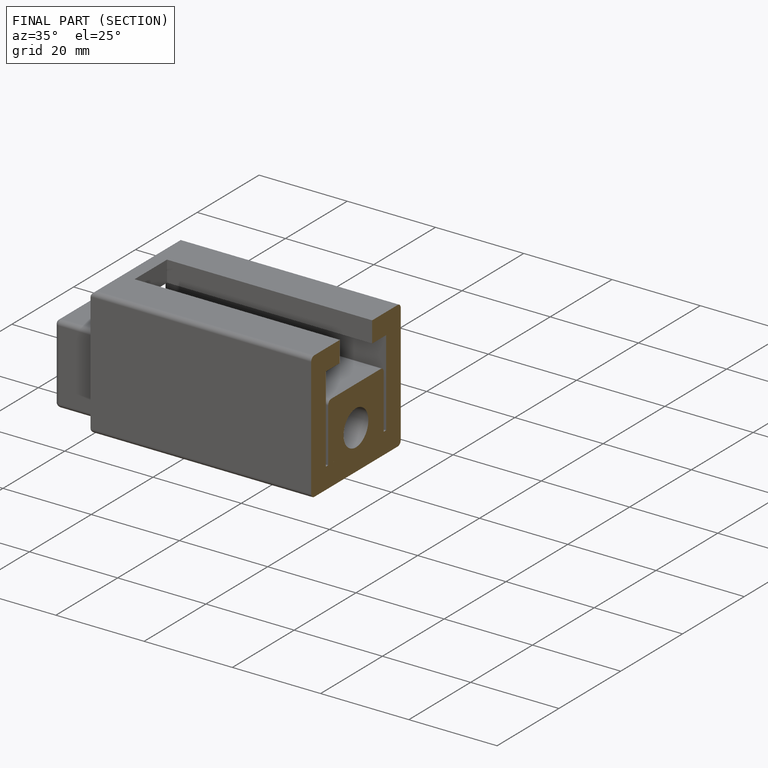
[diagram: finished part — half-section view (interior)]
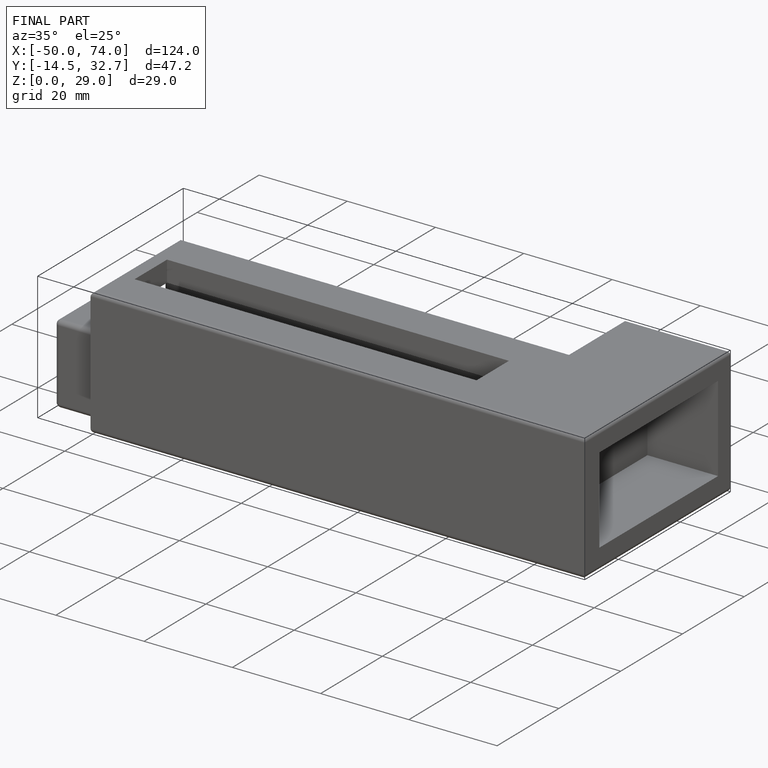
[diagram: finished part — iso view with bounding-box wireframe]
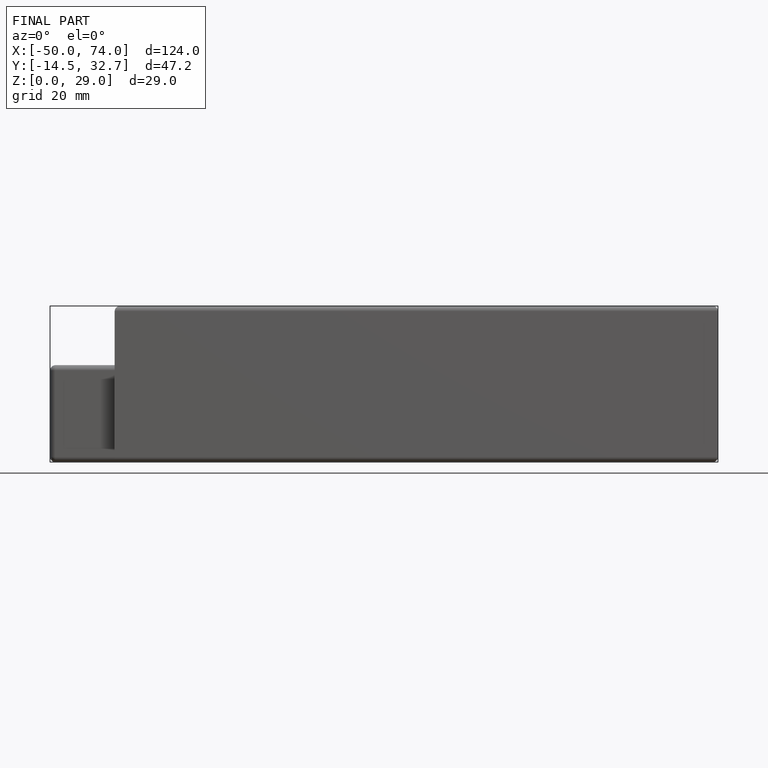
[diagram: finished part — front view with bounding-box wireframe]
